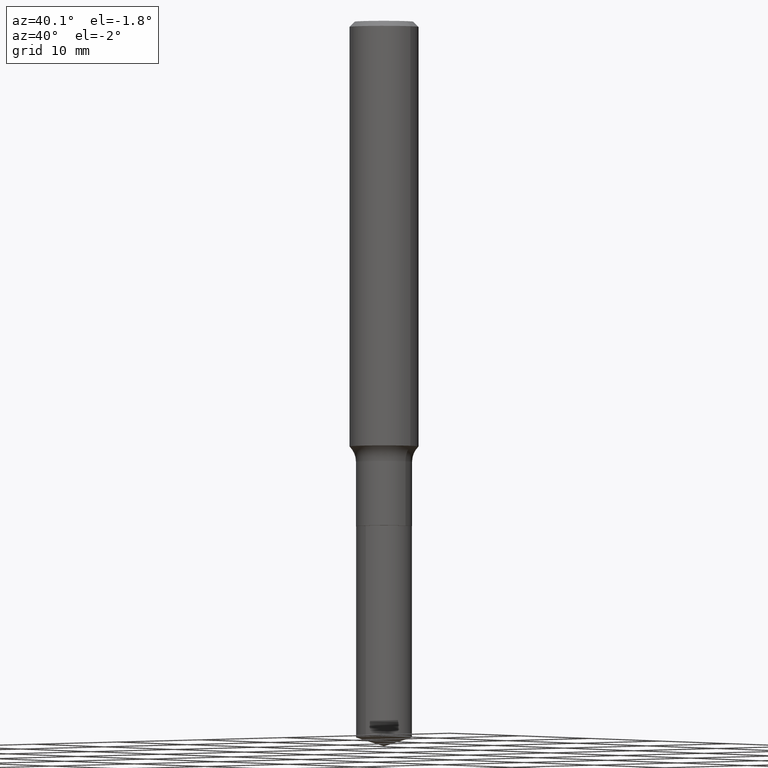
[diagram: clean part render]
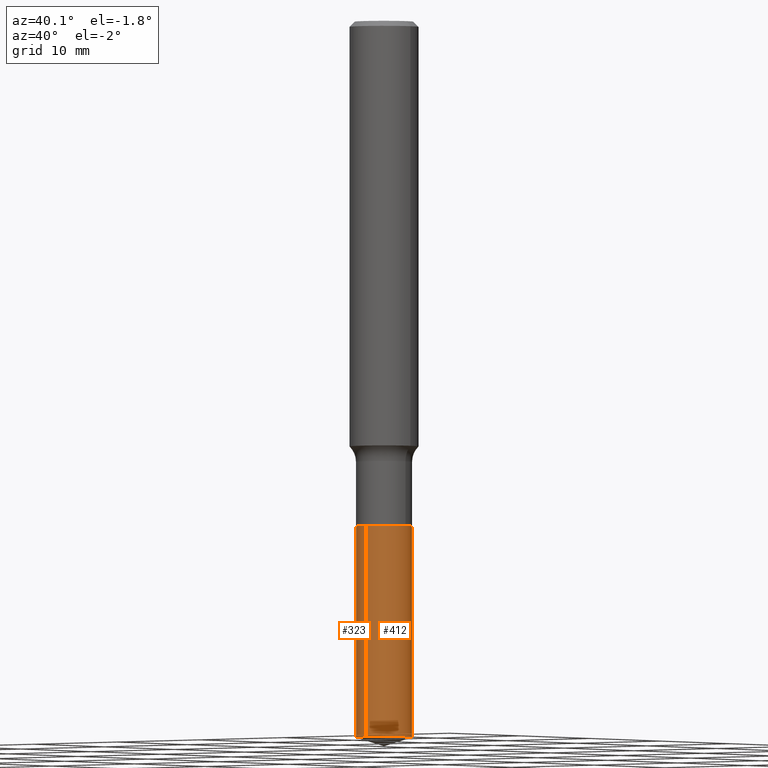
[diagram: same view with one multi-face feature highlighted, each face labeled with its STEP entity id]
A machine part, auxiliary view. The highlighted faces form ONE feature: a constant-radius fillet chain: 2 tangent blend faces with common blend radius 2.5794 mm. The faces share edges in the B-rep.
Their STEP definitions:
[1] entity #323 (Cylinder):
#12 = DIRECTION ( 'NONE',  ( -2.445400954091685323E-29, 3.491578506902869077E-15, 1.000000000000000000 ) ) ;
#28 = FACE_OUTER_BOUND ( 'NONE', #237, .T. ) ;
#32 = ORIENTED_EDGE ( 'NONE', *, *, #293, .T. ) ;
#72 = CARTESIAN_POINT ( 'NONE',  ( -7.091198599189767857E-16, -0.1015500000000090497, -2.592981407989338738 ) ) ;
#80 = DIRECTION ( 'NONE',  ( -2.445400954091685323E-29, 3.491578506902869077E-15, 1.000000000000000000 ) ) ;
#96 = ORIENTED_EDGE ( 'NONE', *, *, #152, .T. ) ;
#115 = LINE ( 'NONE', #387, #445 ) ;
#119 = CARTESIAN_POINT ( 'NONE',  ( 4.470561524587048986E-29, -6.382777035539155361E-15, -1.828100000000000058 ) ) ;
#136 = CARTESIAN_POINT ( 'NONE',  ( 7.215561481644451532E-16, 0.1015499999999909392, -2.592981407989339626 ) ) ;
#145 = CARTESIAN_POINT ( 'NONE',  ( 7.215561481644451532E-16, 0.1015499999999936176, -1.828100000000000280 ) ) ;
#152 = EDGE_CURVE ( 'NONE', #276, #204, #321, .T. ) ;
#172 = DIRECTION ( 'NONE',  ( -2.445400954091685323E-29, 3.491578506902869077E-15, 1.000000000000000000 ) ) ;
#176 = CYLINDRICAL_SURFACE ( 'NONE', #229, 0.1015500000000000014 ) ;
#186 = EDGE_CURVE ( 'NONE', #294, #475, #115, .T. ) ;
#204 = VERTEX_POINT ( 'NONE', #338 ) ;
#209 = DIRECTION ( 'NONE',  ( -6.982962677686266711E-15, -1.000000000000000000, 5.380301316916323039E-15 ) ) ;
#218 = CARTESIAN_POINT ( 'NONE',  ( 6.341003249451169615E-29, -9.053420520004334990E-15, -2.592981407989339182 ) ) ;
#229 = AXIS2_PLACEMENT_3D ( 'NONE', #471, #172, #261 ) ;
#237 = EDGE_LOOP ( 'NONE', ( #458, #32, #96, #434 ) ) ;
#249 = DIRECTION ( 'NONE',  ( -6.982962677686266711E-15, -1.000000000000000000, 2.690150658458161520E-15 ) ) ;
#254 = AXIS2_PLACEMENT_3D ( 'NONE', #119, #280, #249 ) ;
#261 = DIRECTION ( 'NONE',  ( -6.982962677686266711E-15, -1.000000000000000000, 2.690150658458161520E-15 ) ) ;
#269 = EDGE_CURVE ( 'NONE', #475, #204, #456, .T. ) ;
#276 = VERTEX_POINT ( 'NONE', #72 ) ;
#280 = DIRECTION ( 'NONE',  ( -2.445400954091685323E-29, 3.491578506902869077E-15, 1.000000000000000000 ) ) ;
#293 = EDGE_CURVE ( 'NONE', #294, #276, #443, .T. ) ;
#294 = VERTEX_POINT ( 'NONE', #136 ) ;
#321 = LINE ( 'NONE', #487, #342 ) ;
#323 = ADVANCED_FACE ( 'NONE', ( #28 ), #176, .T. ) ;
#338 = CARTESIAN_POINT ( 'NONE',  ( -7.091198599189957184E-16, -0.1015500000000063990, -1.828099999999999836 ) ) ;
#342 = VECTOR ( 'NONE', #12, 39.37007874015748143 ) ;
#387 = CARTESIAN_POINT ( 'NONE',  ( 7.215561481644263192E-16, 0.1015499999999936176, -1.828100000000000280 ) ) ;
#410 = AXIS2_PLACEMENT_3D ( 'NONE', #218, #474, #209 ) ;
#434 = ORIENTED_EDGE ( 'NONE', *, *, #269, .F. ) ;
#443 = CIRCLE ( 'NONE', #410, 0.1015500000000000014 ) ;
#445 = VECTOR ( 'NONE', #80, 39.37007874015748143 ) ;
#456 = CIRCLE ( 'NONE', #254, 0.1015500000000000014 ) ;
#458 = ORIENTED_EDGE ( 'NONE', *, *, #186, .F. ) ;
#471 = CARTESIAN_POINT ( 'NONE',  ( 4.470561524587048986E-29, -6.382777035539155361E-15, -1.828100000000000058 ) ) ;
#474 = DIRECTION ( 'NONE',  ( -2.445400954091685323E-29, 3.491578506902869077E-15, 1.000000000000000000 ) ) ;
#475 = VERTEX_POINT ( 'NONE', #145 ) ;
#487 = CARTESIAN_POINT ( 'NONE',  ( -7.091198599189957184E-16, -0.1015500000000063990, -1.828099999999999836 ) ) ;
[2] entity #412 (Cylinder):
#12 = DIRECTION ( 'NONE',  ( -2.445400954091685323E-29, 3.491578506902869077E-15, 1.000000000000000000 ) ) ;
#42 = CIRCLE ( 'NONE', #106, 0.1015500000000000014 ) ;
#43 = ORIENTED_EDGE ( 'NONE', *, *, #175, .F. ) ;
#51 = DIRECTION ( 'NONE',  ( -6.982962677686266711E-15, -1.000000000000000000, 5.380301316916323039E-15 ) ) ;
#72 = CARTESIAN_POINT ( 'NONE',  ( -7.091198599189767857E-16, -0.1015500000000090497, -2.592981407989338738 ) ) ;
#80 = DIRECTION ( 'NONE',  ( -2.445400954091685323E-29, 3.491578506902869077E-15, 1.000000000000000000 ) ) ;
#91 = CARTESIAN_POINT ( 'NONE',  ( 4.470561524587048986E-29, -6.382777035539155361E-15, -1.828100000000000058 ) ) ;
#106 = AXIS2_PLACEMENT_3D ( 'NONE', #91, #193, #491 ) ;
#115 = LINE ( 'NONE', #387, #445 ) ;
#124 = EDGE_CURVE ( 'NONE', #276, #294, #340, .T. ) ;
#136 = CARTESIAN_POINT ( 'NONE',  ( 7.215561481644451532E-16, 0.1015499999999909392, -2.592981407989339626 ) ) ;
#137 = CARTESIAN_POINT ( 'NONE',  ( 4.470561524587048986E-29, -6.382777035539155361E-15, -1.828100000000000058 ) ) ;
#145 = CARTESIAN_POINT ( 'NONE',  ( 7.215561481644451532E-16, 0.1015499999999936176, -1.828100000000000280 ) ) ;
#152 = EDGE_CURVE ( 'NONE', #276, #204, #321, .T. ) ;
#175 = EDGE_CURVE ( 'NONE', #204, #475, #42, .T. ) ;
#186 = EDGE_CURVE ( 'NONE', #294, #475, #115, .T. ) ;
#193 = DIRECTION ( 'NONE',  ( -2.445400954091685323E-29, 3.491578506902869077E-15, 1.000000000000000000 ) ) ;
#199 = ORIENTED_EDGE ( 'NONE', *, *, #152, .F. ) ;
#204 = VERTEX_POINT ( 'NONE', #338 ) ;
#214 = FACE_OUTER_BOUND ( 'NONE', #289, .T. ) ;
#222 = AXIS2_PLACEMENT_3D ( 'NONE', #428, #251, #51 ) ;
#242 = AXIS2_PLACEMENT_3D ( 'NONE', #137, #367, #299 ) ;
#251 = DIRECTION ( 'NONE',  ( -2.445400954091685323E-29, 3.491578506902869077E-15, 1.000000000000000000 ) ) ;
#276 = VERTEX_POINT ( 'NONE', #72 ) ;
#289 = EDGE_LOOP ( 'NONE', ( #358, #448, #43, #199 ) ) ;
#294 = VERTEX_POINT ( 'NONE', #136 ) ;
#299 = DIRECTION ( 'NONE',  ( -6.982962677686266711E-15, -1.000000000000000000, 2.690150658458161520E-15 ) ) ;
#321 = LINE ( 'NONE', #487, #342 ) ;
#338 = CARTESIAN_POINT ( 'NONE',  ( -7.091198599189957184E-16, -0.1015500000000063990, -1.828099999999999836 ) ) ;
#340 = CIRCLE ( 'NONE', #222, 0.1015500000000000014 ) ;
#342 = VECTOR ( 'NONE', #12, 39.37007874015748143 ) ;
#358 = ORIENTED_EDGE ( 'NONE', *, *, #124, .T. ) ;
#367 = DIRECTION ( 'NONE',  ( -2.445400954091685323E-29, 3.491578506902869077E-15, 1.000000000000000000 ) ) ;
#387 = CARTESIAN_POINT ( 'NONE',  ( 7.215561481644263192E-16, 0.1015499999999936176, -1.828100000000000280 ) ) ;
#412 = ADVANCED_FACE ( 'NONE', ( #214 ), #481, .T. ) ;
#428 = CARTESIAN_POINT ( 'NONE',  ( 6.341003249451169615E-29, -9.053420520004334990E-15, -2.592981407989339182 ) ) ;
#445 = VECTOR ( 'NONE', #80, 39.37007874015748143 ) ;
#448 = ORIENTED_EDGE ( 'NONE', *, *, #186, .T. ) ;
#475 = VERTEX_POINT ( 'NONE', #145 ) ;
#481 = CYLINDRICAL_SURFACE ( 'NONE', #242, 0.1015500000000000014 ) ;
#487 = CARTESIAN_POINT ( 'NONE',  ( -7.091198599189957184E-16, -0.1015500000000063990, -1.828099999999999836 ) ) ;
#491 = DIRECTION ( 'NONE',  ( -6.982962677686266711E-15, -1.000000000000000000, 2.690150658458161520E-15 ) ) ;